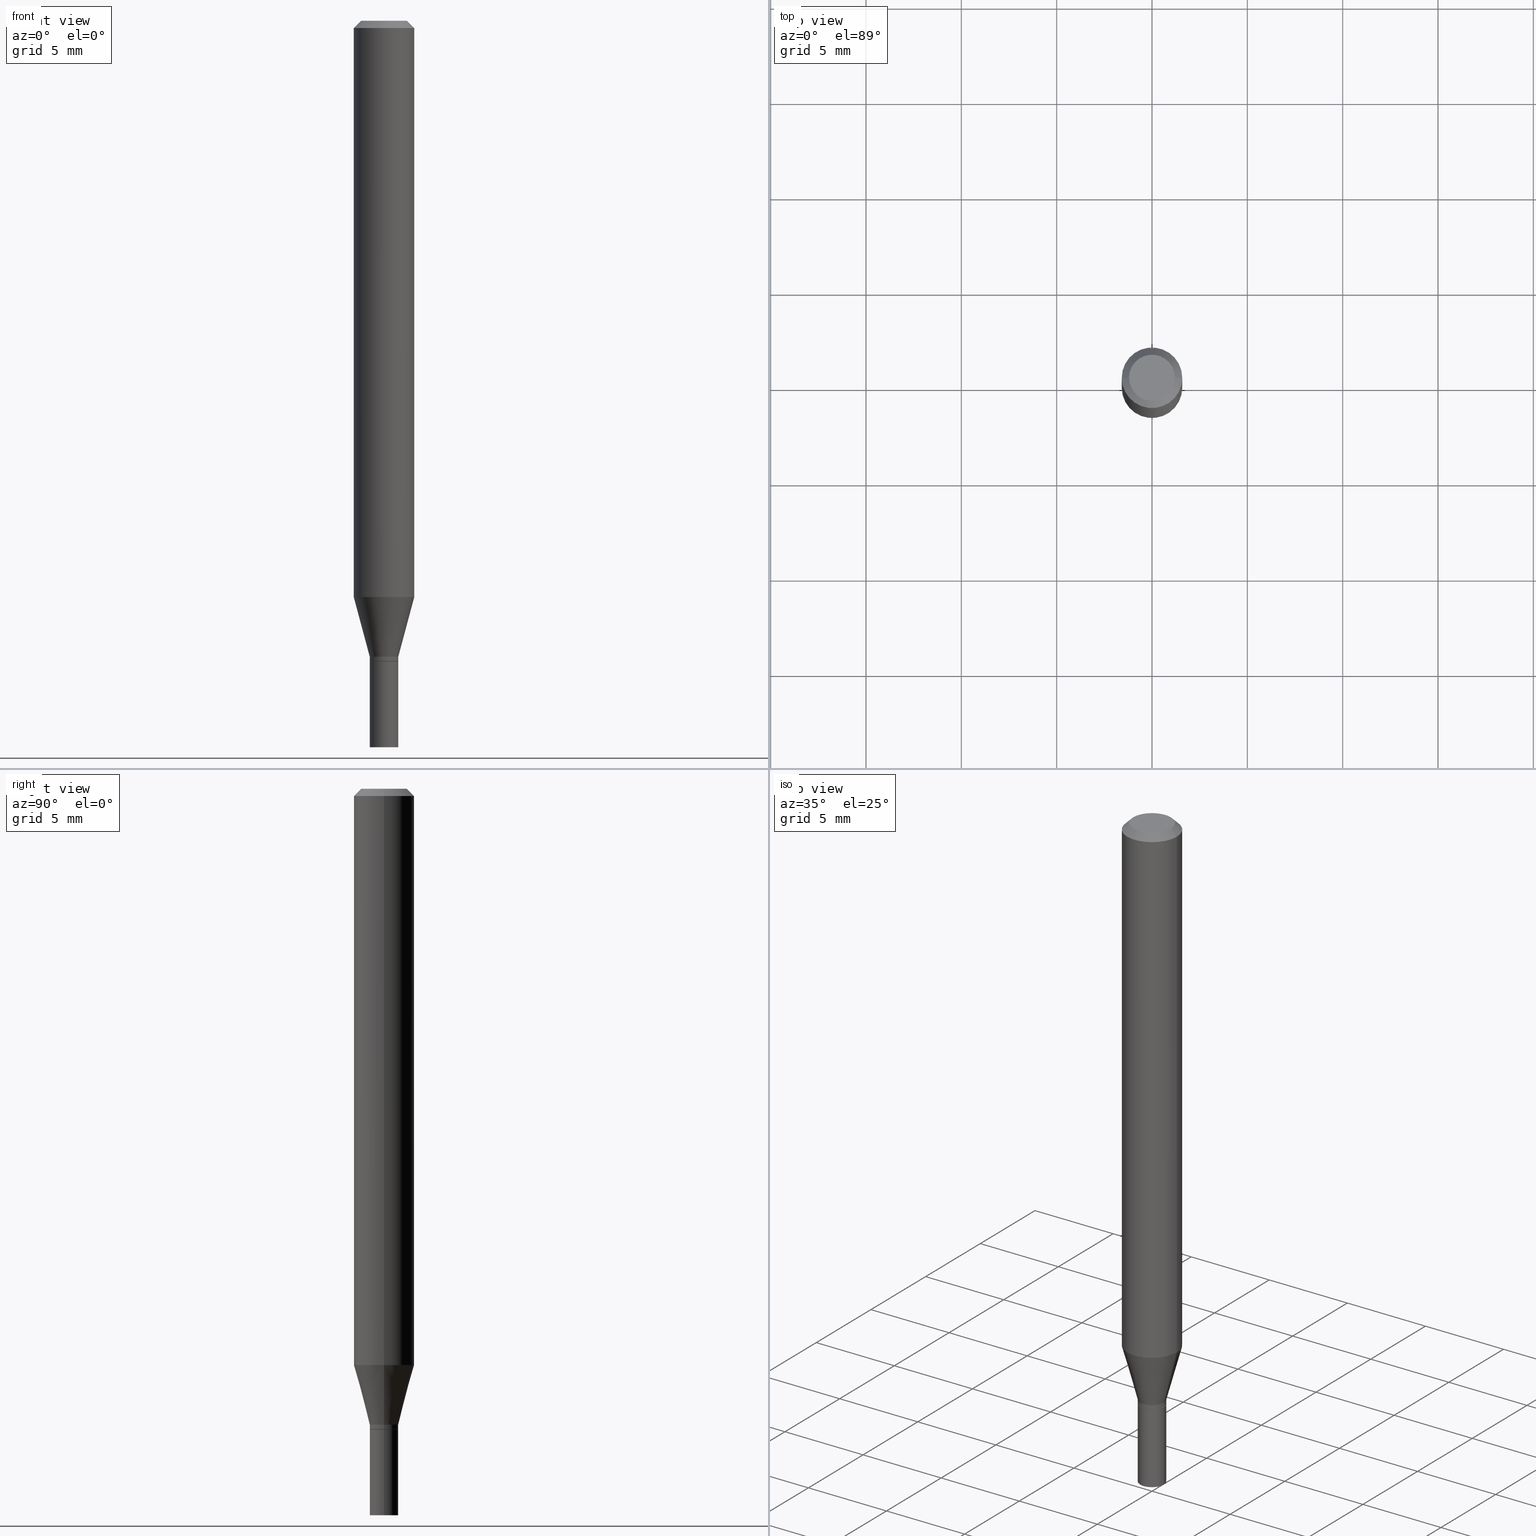
[diagram: canonical four-view strip — front | top / right | iso, engineering-drawing reading convention]
A machine part, canonical four-view strip (front | top / right | iso — engineering-drawing reading convention). The complete STEP part file that produces these views, byte-faithful:
ISO-10303-21;
HEADER;
FILE_DESCRIPTION (( 'STEP AP203' ),
    '1' );
FILE_NAME ('00568.STEP',
    '2024-03-19T21:45:27',
    ( '' ),
    ( '' ),
    'SwSTEP 2.0',
    'SolidWorks 2023',
    '' );
FILE_SCHEMA (( 'CONFIG_CONTROL_DESIGN' ));
ENDSEC;

DATA;
#1 = DIRECTION ( 'NONE',  ( -2.445468806185136597E-29, 3.491481338843145583E-15, 1.000000000000000000 ) ) ;
#2 = FACE_OUTER_BOUND ( 'NONE', #343, .T. ) ;
#3 = ORIENTED_EDGE ( 'NONE', *, *, #413, .T. ) ;
#4 = AXIS2_PLACEMENT_3D ( 'NONE', #465, #73, #169 ) ;
#5 = DIMENSIONAL_EXPONENTS ( 1.000000000000000000, 0.000000000000000000, 0.000000000000000000, 0.000000000000000000, 0.000000000000000000, 0.000000000000000000, 0.000000000000000000 ) ;
#6 = ORIENTED_EDGE ( 'NONE', *, *, #12, .F. ) ;
#7 = DIRECTION ( 'NONE',  ( -2.445468806185136597E-29, 3.491481338843145583E-15, 1.000000000000000000 ) ) ;
#8 = CONICAL_SURFACE ( 'NONE', #166, 0.02949999999999991865, 0.2617993877991501850 ) ;
#9 = DIRECTION ( 'NONE',  ( -2.445468806185136597E-29, 3.491481338843145583E-15, 1.000000000000000000 ) ) ;
#10 = ORIENTED_EDGE ( 'NONE', *, *, #55, .F. ) ;
#11 = DIRECTION ( 'NONE',  ( 1.000000000000000000, -6.982962677686262766E-15, 0.000000000000000000 ) ) ;
#12 = EDGE_CURVE ( 'NONE', #109, #408, #93, .T. ) ;
#13 = DIRECTION ( 'NONE',  ( 1.000000000000000000, -6.982962677686269866E-15, 0.000000000000000000 ) ) ;
#14 = CONICAL_SURFACE ( 'NONE', #62, 0.06250000000000000000, 0.7853981633974567167 ) ;
#15 = LOCAL_TIME ( 17, 45, 27.00000000000000000, #34 ) ;
#16 = EDGE_LOOP ( 'NONE', ( #345, #369 ) ) ;
#17 = FACE_OUTER_BOUND ( 'NONE', #227, .T. ) ;
#18 = APPLICATION_CONTEXT ( 'configuration controlled 3d designs of mechanical parts and assemblies' ) ;
#19 = FACE_OUTER_BOUND ( 'NONE', #56, .T. ) ;
#20 = EDGE_LOOP ( 'NONE', ( #10, #3, #300, #298 ) ) ;
#21 = EDGE_CURVE ( 'NONE', #216, #268, #359, .T. ) ;
#22 = DATE_AND_TIME ( #53, #232 ) ;
#23 = ORIENTED_EDGE ( 'NONE', *, *, #275, .F. ) ;
#24 = PLANE ( 'NONE',  #119 ) ;
#25 = LINE ( 'NONE', #67, #26 ) ;
#26 = VECTOR ( 'NONE', #206, 39.37007874015748143 ) ;
#27 = ORIENTED_EDGE ( 'NONE', *, *, #21, .F. ) ;
#28 = CARTESIAN_POINT ( 'NONE',  ( 2.909722286031829716E-29, -4.154312268143090689E-15, -1.189842323350227327 ) ) ;
#29 = CARTESIAN_POINT ( 'NONE',  ( -0.02949999999999992212, -4.407873963570831397E-15, -1.322500000000000231 ) ) ;
#30 = DIRECTION ( 'NONE',  ( 1.000000000000000000, -6.982962677686250933E-15, 0.000000000000000000 ) ) ;
#31 = ORIENTED_EDGE ( 'NONE', *, *, #215, .T. ) ;
#32 = EDGE_CURVE ( 'NONE', #354, #177, #172, .T. ) ;
#33 = DATE_AND_TIME ( #92, #464 ) ;
#34 = COORDINATED_UNIVERSAL_TIME_OFFSET ( 5, 0, .BEHIND. ) ;
#35 = DIRECTION ( 'NONE',  ( 1.000000000000000000, -6.982962677686266711E-15, 0.000000000000000000 ) ) ;
#36 = CC_DESIGN_PERSON_AND_ORGANIZATION_ASSIGNMENT ( #286, #251, ( #243 ) ) ;
#37 = DIRECTION ( 'NONE',  ( 1.000000000000000000, -6.982962677686265922E-15, 4.876176775795935793E-29 ) ) ;
#38 = EDGE_CURVE ( 'NONE', #408, #109, #418, .T. ) ;
#39 = CONICAL_SURFACE ( 'NONE', #281, 0.06250000000000000000, 0.7853981633974567167 ) ;
#40 = LINE ( 'NONE', #48, #324 ) ;
#41 = EDGE_CURVE ( 'NONE', #148, #63, #104, .T. ) ;
#42 = DIRECTION ( 'NONE',  ( 1.000000000000000000, -6.982962677686267499E-15, 4.852736867747366768E-29 ) ) ;
#43 = CARTESIAN_POINT ( 'NONE',  ( 3.235355230582935570E-29, -4.619229811289481459E-15, -1.323000000000000176 ) ) ;
#44 = FACE_OUTER_BOUND ( 'NONE', #393, .T. ) ;
#45 = AXIS2_PLACEMENT_3D ( 'NONE', #219, #1, #363 ) ;
#46 = VECTOR ( 'NONE', #390, 39.37007874015748143 ) ;
#47 = CARTESIAN_POINT ( 'NONE',  ( 3.210900542521084585E-29, -4.584314997901050598E-15, -1.313000000000000167 ) ) ;
#48 = CARTESIAN_POINT ( 'NONE',  ( 0.06250000000000000000, -4.364351673553916694E-16, 3.047610484872459871E-30 ) ) ;
#49 = DIRECTION ( 'NONE',  ( 0.7071067811865534569, -7.319954787623276556E-15, -0.7071067811865415775 ) ) ;
#50 = SHAPE_DEFINITION_REPRESENTATION ( #134, #164 ) ;
#51 = CARTESIAN_POINT ( 'NONE',  ( -0.02949999999999991865, -4.042463974572424662E-15, -1.313000000000000167 ) ) ;
#52 = VECTOR ( 'NONE', #341, 39.37007874015748143 ) ;
#53 = CALENDAR_DATE ( 2024, 19, 3 ) ;
#54 = ORIENTED_EDGE ( 'NONE', *, *, #32, .T. ) ;
#55 = EDGE_CURVE ( 'NONE', #177, #122, #181, .T. ) ;
#56 = EDGE_LOOP ( 'NONE', ( #279, #6, #402, #448 ) ) ;
#57 = EDGE_CURVE ( 'NONE', #408, #311, #105, .T. ) ;
#58 = DIRECTION ( 'NONE',  ( -1.000000000000000000, 6.982962677686265922E-15, -4.876176775795935793E-29 ) ) ;
#59 = ORIENTED_EDGE ( 'NONE', *, *, #12, .T. ) ;
#60 =( NAMED_UNIT ( * ) SI_UNIT ( $, .STERADIAN. ) SOLID_ANGLE_UNIT ( ) );
#61 = APPROVAL_DATE_TIME ( #22, #462 ) ;
#62 = AXIS2_PLACEMENT_3D ( 'NONE', #83, #78, #403 ) ;
#63 = VERTEX_POINT ( 'NONE', #188 ) ;
#64 = CC_DESIGN_PERSON_AND_ORGANIZATION_ASSIGNMENT ( #248, #310, ( #328 ) ) ;
#65 = ORIENTED_EDGE ( 'NONE', *, *, #32, .F. ) ;
#66 = APPLICATION_PROTOCOL_DEFINITION ( 'international standard', 'config_control_design', 1994, #18 ) ;
#67 = CARTESIAN_POINT ( 'NONE',  ( 0.02949999999999991865, -2.059973989917442990E-16, 1.438472148859797121E-30 ) ) ;
#68 = ADVANCED_FACE ( 'NONE', ( #258 ), #155, .T. ) ;
#69 = DATE_AND_TIME ( #386, #15 ) ;
#70 = CONICAL_SURFACE ( 'NONE', #88, 0.02899999999999999800, 0.7853981633974739252 ) ;
#71 = EDGE_CURVE ( 'NONE', #377, #122, #242, .T. ) ;
#72 = AXIS2_PLACEMENT_3D ( 'NONE', #153, #189, #411 ) ;
#73 = DIRECTION ( 'NONE',  ( -2.445468806185136597E-29, 3.491481338843145583E-15, 1.000000000000000000 ) ) ;
#74 = ADVANCED_FACE ( 'NONE', ( #331 ), #255, .T. ) ;
#75 = CARTESIAN_POINT ( 'NONE',  ( 0.000000000000000000, 0.000000000000000000, 0.000000000000000000 ) ) ;
#76 = DIRECTION ( 'NONE',  ( -2.445468806185136597E-29, 3.491481338843145583E-15, 1.000000000000000000 ) ) ;
#77 = AXIS2_PLACEMENT_3D ( 'NONE', #220, #366, #214 ) ;
#78 = DIRECTION ( 'NONE',  ( 2.445468806185136597E-29, -3.491481338843145583E-15, -1.000000000000000000 ) ) ;
#79 = ORIENTED_EDGE ( 'NONE', *, *, #127, .F. ) ;
#80 = ORIENTED_EDGE ( 'NONE', *, *, #371, .T. ) ;
#81 = APPLICATION_CONTEXT ( 'configuration controlled 3d designs of mechanical parts and assemblies' ) ;
#82 = DIRECTION ( 'NONE',  ( 1.000000000000000000, -6.982962677686269866E-15, 0.000000000000000000 ) ) ;
#83 = CARTESIAN_POINT ( 'NONE',  ( 3.668203209277705088E-31, -5.237222008264718399E-17, -0.01499999999999999944 ) ) ;
#84 = CC_DESIGN_DATE_AND_TIME_ASSIGNMENT ( #274, #352, ( #319 ) ) ;
#85 = CARTESIAN_POINT ( 'NONE',  ( 0.02949999999999991865, -4.790312396892795119E-15, -1.313000000000000167 ) ) ;
#86 = CC_DESIGN_APPROVAL ( #100, ( #373 ) ) ;
#87 = CARTESIAN_POINT ( 'NONE',  ( 0.02949999999999991865, -4.790312396892795119E-15, -1.313000000000000167 ) ) ;
#88 = AXIS2_PLACEMENT_3D ( 'NONE', #322, #460, #128 ) ;
#89 = ORIENTED_EDGE ( 'NONE', *, *, #113, .T. ) ;
#90 = ORIENTED_EDGE ( 'NONE', *, *, #301, .T. ) ;
#91 = ORIENTED_EDGE ( 'NONE', *, *, #361, .T. ) ;
#92 = CALENDAR_DATE ( 2024, 19, 3 ) ;
#93 = CIRCLE ( 'NONE', #45, 0.04749999999999999362 ) ;
#94 = CIRCLE ( 'NONE', #4, 0.02949999999999999845 ) ;
#95 = ORIENTED_EDGE ( 'NONE', *, *, #292, .T. ) ;
#96 = LOCAL_TIME ( 17, 45, 27.00000000000000000, #207 ) ;
#97 = DIRECTION ( 'NONE',  ( 0.000000000000000000, 0.000000000000000000, 1.000000000000000000 ) ) ;
#98 = APPROVAL_ROLE ( '' ) ;
#99 = DIRECTION ( 'NONE',  ( -2.445468806185136597E-29, 3.491481338843145583E-15, 1.000000000000000000 ) ) ;
#100 = APPROVAL ( #458, 'UNSPECIFIED' ) ;
#101 = VECTOR ( 'NONE', #49, 39.37007874015748143 ) ;
#102 = DIRECTION ( 'NONE',  ( 1.000000000000000000, -6.982962677686266711E-15, 0.000000000000000000 ) ) ;
#103 = DIRECTION ( 'NONE',  ( -2.445468806185136597E-29, 3.491481338843145583E-15, 1.000000000000000000 ) ) ;
#104 = CIRCLE ( 'NONE', #137, 0.02899999999999999800 ) ;
#105 = LINE ( 'NONE', #294, #101 ) ;
#106 = CARTESIAN_POINT ( 'NONE',  ( 0.02949999999999992212, -4.823481469611804476E-15, -1.322500000000000231 ) ) ;
#107 = DIRECTION ( 'NONE',  ( 2.438088387897960049E-29, -3.491481338843145188E-15, -1.000000000000000000 ) ) ;
#108 = ORIENTED_EDGE ( 'NONE', *, *, #226, .F. ) ;
#109 = VERTEX_POINT ( 'NONE', #399 ) ;
#110 = CYLINDRICAL_SURFACE ( 'NONE', #212, 0.02949999999999999845 ) ;
#111 = CIRCLE ( 'NONE', #296, 0.02949999999999999845 ) ;
#112 = ORIENTED_EDGE ( 'NONE', *, *, #38, .F. ) ;
#113 = EDGE_CURVE ( 'NONE', #377, #268, #303, .T. ) ;
#114 = ORIENTED_EDGE ( 'NONE', *, *, #292, .F. ) ;
#115 = CYLINDRICAL_SURFACE ( 'NONE', #72, 0.06250000000000000000 ) ;
#116 = ORIENTED_EDGE ( 'NONE', *, *, #71, .T. ) ;
#117 = CARTESIAN_POINT ( 'NONE',  ( 3.316907271900976096E-16, 0.04749999999999999362, -2.904368096790510281E-16 ) ) ;
#118 = CIRCLE ( 'NONE', #443, 0.06250000000000000000 ) ;
#119 = AXIS2_PLACEMENT_3D ( 'NONE', #117, #380, #58 ) ;
#120 = LINE ( 'NONE', #414, #329 ) ;
#121 = ORIENTED_EDGE ( 'NONE', *, *, #395, .F. ) ;
#122 = VERTEX_POINT ( 'NONE', #51 ) ;
#123 = PERSON_AND_ORGANIZATION_ROLE ( 'creator' ) ;
#124 = CARTESIAN_POINT ( 'NONE',  ( -0.02899999999999999800, -4.413172417919052222E-15, -1.323000000000000176 ) ) ;
#125 = AXIS2_PLACEMENT_3D ( 'NONE', #186, #336, #350 ) ;
#126 = ORIENTED_EDGE ( 'NONE', *, *, #452, .F. ) ;
#127 = EDGE_CURVE ( 'NONE', #337, #233, #374, .T. ) ;
#128 = DIRECTION ( 'NONE',  ( 1.000000000000000000, -6.982962677686266711E-15, 0.000000000000000000 ) ) ;
#129 = PERSON_AND_ORGANIZATION ( #170, #421 ) ;
#130 = APPROVAL_PERSON_ORGANIZATION ( #195, #462, #407 ) ;
#131 = FACE_OUTER_BOUND ( 'NONE', #384, .T. ) ;
#132 = DIRECTION ( 'NONE',  ( 1.000000000000000000, -6.982962677686266711E-15, 4.876176775795935793E-29 ) ) ;
#133 = ADVANCED_FACE ( 'NONE', ( #141 ), #404, .F. ) ;
#134 = PRODUCT_DEFINITION_SHAPE ( 'NONE', 'NONE',  #373 ) ;
#135 = DIRECTION ( 'NONE',  ( -2.438088387897960049E-29, 3.491481338843145188E-15, 1.000000000000000000 ) ) ;
#136 = DIRECTION ( 'NONE',  ( 1.000000000000000000, -6.982962677686269077E-15, 0.000000000000000000 ) ) ;
#137 = AXIS2_PLACEMENT_3D ( 'NONE', #43, #326, #175 ) ;
#138 = ADVANCED_FACE ( 'NONE', ( #187 ), #304, .F. ) ;
#139 = ORIENTED_EDGE ( 'NONE', *, *, #211, .F. ) ;
#140 = DIRECTION ( 'NONE',  ( 1.000000000000000000, -6.982962677686265922E-15, 4.876176775795935793E-29 ) ) ;
#141 = FACE_OUTER_BOUND ( 'NONE', #203, .T. ) ;
#142 = DIRECTION ( 'NONE',  ( 1.000000000000000000, -6.982962677686266711E-15, 0.000000000000000000 ) ) ;
#143 = EDGE_CURVE ( 'NONE', #63, #354, #394, .T. ) ;
#144 = PRODUCT_RELATED_PRODUCT_CATEGORY ( 'detail', '', ( #328 ) ) ;
#145 = ORIENTED_EDGE ( 'NONE', *, *, #38, .T. ) ;
#146 = CARTESIAN_POINT ( 'NONE',  ( 3.235355230582935570E-29, -4.619229811289481459E-15, -1.323000000000000176 ) ) ;
#147 = AXIS2_PLACEMENT_3D ( 'NONE', #266, #185, #11 ) ;
#148 = VERTEX_POINT ( 'NONE', #183 ) ;
#149 = VECTOR ( 'NONE', #367, 39.37007874015748143 ) ;
#150 = CARTESIAN_POINT ( 'NONE',  ( 3.668203209277705088E-31, -5.237222008264718399E-17, -0.01499999999999999944 ) ) ;
#151 = DIRECTION ( 'NONE',  ( -2.438088387897960049E-29, 3.491481338843145188E-15, 1.000000000000000000 ) ) ;
#152 = ORIENTED_EDGE ( 'NONE', *, *, #395, .T. ) ;
#153 = CARTESIAN_POINT ( 'NONE',  ( 0.000000000000000000, 0.000000000000000000, 0.000000000000000000 ) ) ;
#154 = EDGE_LOOP ( 'NONE', ( #353, #231, #80, #108 ) ) ;
#155 = CONICAL_SURFACE ( 'NONE', #222, 0.02949999999999991865, 0.2617993877991501850 ) ;
#156 = APPROVAL ( #419, 'UNSPECIFIED' ) ;
#157 = DIRECTION ( 'NONE',  ( -1.000000000000000000, 6.982962677686266711E-15, 0.000000000000000000 ) ) ;
#158 = ORIENTED_EDGE ( 'NONE', *, *, #325, .F. ) ;
#159 = MANIFOLD_SOLID_BREP ( 'Body-Move/Copy2[1]', #360 ) ;
#160 = LINE ( 'NONE', #124, #250 ) ;
#161 = ORIENTED_EDGE ( 'NONE', *, *, #55, .T. ) ;
#162 = COORDINATED_UNIVERSAL_TIME_OFFSET ( 5, 0, .BEHIND. ) ;
#163 = CARTESIAN_POINT ( 'NONE',  ( 0.02949999999999999845, -2.059973989917448413E-16, 1.438472148859800975E-30 ) ) ;
#164 = ADVANCED_BREP_SHAPE_REPRESENTATION ( '00568', ( #159, #168, #389 ), #290 ) ;
#165 = AXIS2_PLACEMENT_3D ( 'NONE', #210, #254, #35 ) ;
#166 = AXIS2_PLACEMENT_3D ( 'NONE', #237, #199, #13 ) ;
#167 = PERSON_AND_ORGANIZATION ( #170, #421 ) ;
#168 = MANIFOLD_SOLID_BREP ( 'Body-Move/Copy2[2]', #388 ) ;
#169 = DIRECTION ( 'NONE',  ( 1.000000000000000000, -6.982962677686250933E-15, 0.000000000000000000 ) ) ;
#170 = PERSON ( 'UNSPECIFIED', 'UNSPECIFIED', 'UNSPECIFIED', ('UNSPECIFIED'), ('UNSPECIFIED'), ('UNSPECIFIED') ) ;
#171 = CARTESIAN_POINT ( 'NONE',  ( 3.668203209277705088E-31, -5.237222008264718399E-17, -0.01499999999999999944 ) ) ;
#172 = CIRCLE ( 'NONE', #429, 0.02949999999999992212 ) ;
#173 = AXIS2_PLACEMENT_3D ( 'NONE', #28, #450, #277 ) ;
#174 = CYLINDRICAL_SURFACE ( 'NONE', #125, 0.02949999999999991865 ) ;
#175 = DIRECTION ( 'NONE',  ( 1.000000000000000000, -6.982962677686266711E-15, 0.000000000000000000 ) ) ;
#176 = CARTESIAN_POINT ( 'NONE',  ( 3.235355230582935570E-29, -4.619229811289481459E-15, -1.323000000000000176 ) ) ;
#177 = VERTEX_POINT ( 'NONE', #29 ) ;
#178 = EDGE_CURVE ( 'NONE', #354, #377, #25, .T. ) ;
#179 = CARTESIAN_POINT ( 'NONE',  ( 3.576687321579069994E-29, -5.368277968210015545E-15, -1.500000000000000222 ) ) ;
#180 = AXIS2_PLACEMENT_3D ( 'NONE', #356, #99, #461 ) ;
#181 = LINE ( 'NONE', #224, #318 ) ;
#182 = DIRECTION ( 'NONE',  ( -2.445468806185136877E-29, 3.491481338843145188E-15, 1.000000000000000000 ) ) ;
#183 = CARTESIAN_POINT ( 'NONE',  ( -0.02899999999999999800, -4.410523190744942598E-15, -1.323000000000000176 ) ) ;
#184 = VERTEX_POINT ( 'NONE', #415 ) ;
#185 = DIRECTION ( 'NONE',  ( -2.445468806185136597E-29, 3.491481338843145583E-15, 1.000000000000000000 ) ) ;
#186 = CARTESIAN_POINT ( 'NONE',  ( 0.000000000000000000, 0.000000000000000000, 0.000000000000000000 ) ) ;
#187 = FACE_OUTER_BOUND ( 'NONE', #16, .T. ) ;
#188 = CARTESIAN_POINT ( 'NONE',  ( 0.02899999999999999800, -4.821735728942382972E-15, -1.323000000000000176 ) ) ;
#189 = DIRECTION ( 'NONE',  ( -2.445468806185136597E-29, 3.491481338843145583E-15, 1.000000000000000000 ) ) ;
#190 = ADVANCED_FACE ( 'NONE', ( #19 ), #39, .T. ) ;
#191 = AXIS2_PLACEMENT_3D ( 'NONE', #146, #9, #142 ) ;
#192 = CARTESIAN_POINT ( 'NONE',  ( -0.02949999999999999845, 2.096101070492295438E-16, -1.451085851625197166E-30 ) ) ;
#193 = ORIENTED_EDGE ( 'NONE', *, *, #41, .T. ) ;
#194 = CARTESIAN_POINT ( 'NONE',  ( 0.04749999999999999362, -4.035134999187582567E-16, -2.491828921680006996E-16 ) ) ;
#195 = PERSON_AND_ORGANIZATION ( #170, #421 ) ;
#196 = VERTEX_POINT ( 'NONE', #238 ) ;
#197 = ADVANCED_FACE ( 'NONE', ( #201 ), #451, .T. ) ;
#198 = ORIENTED_EDGE ( 'NONE', *, *, #433, .F. ) ;
#199 = DIRECTION ( 'NONE',  ( -2.445468806185136597E-29, 3.491481338843145583E-15, 1.000000000000000000 ) ) ;
#200 = AXIS2_PLACEMENT_3D ( 'NONE', #358, #107, #432 ) ;
#201 = FACE_OUTER_BOUND ( 'NONE', #293, .T. ) ;
#202 = CIRCLE ( 'NONE', #362, 0.02949999999999992212 ) ;
#203 = EDGE_LOOP ( 'NONE', ( #139, #307 ) ) ;
#204 = CC_DESIGN_PERSON_AND_ORGANIZATION_ASSIGNMENT ( #167, #123, ( #373 ) ) ;
#205 = ORIENTED_EDGE ( 'NONE', *, *, #178, .F. ) ;
#206 = DIRECTION ( 'NONE',  ( -2.445468806185136877E-29, 3.491481338843145188E-15, 1.000000000000000000 ) ) ;
#207 = COORDINATED_UNIVERSAL_TIME_OFFSET ( 5, 0, .BEHIND. ) ;
#208 = CARTESIAN_POINT ( 'NONE',  ( -0.06250000000000000000, 4.440892098500626162E-16, -3.074334431409316114E-30 ) ) ;
#209 = AXIS2_PLACEMENT_3D ( 'NONE', #278, #323, #37 ) ;
#210 = CARTESIAN_POINT ( 'NONE',  ( 3.235355230582935570E-29, -4.619229811289481459E-15, -1.323000000000000176 ) ) ;
#211 = EDGE_CURVE ( 'NONE', #63, #148, #305, .T. ) ;
#212 = AXIS2_PLACEMENT_3D ( 'NONE', #262, #7, #140 ) ;
#213 = DIRECTION ( 'NONE',  ( -2.445468806185136597E-29, 3.491481338843145583E-15, 1.000000000000000000 ) ) ;
#214 = DIRECTION ( 'NONE',  ( 1.000000000000000000, -6.982962677686250933E-15, 0.000000000000000000 ) ) ;
#215 = EDGE_CURVE ( 'NONE', #122, #377, #401, .T. ) ;
#216 = VERTEX_POINT ( 'NONE', #247 ) ;
#217 = ORIENTED_EDGE ( 'NONE', *, *, #113, .F. ) ;
#218 = CARTESIAN_POINT ( 'NONE',  ( 0.02899999999999999800, -4.821735728942382972E-15, -1.323000000000000176 ) ) ;
#219 = CARTESIAN_POINT ( 'NONE',  ( 6.093689898318465335E-45, -8.700174179635472181E-31, -2.491828921680032634E-16 ) ) ;
#220 = CARTESIAN_POINT ( 'NONE',  ( 3.668203209277704895E-29, -5.237222008264718177E-15, -1.500000000000000222 ) ) ;
#221 = ORIENTED_EDGE ( 'NONE', *, *, #143, .T. ) ;
#222 = AXIS2_PLACEMENT_3D ( 'NONE', #430, #370, #335 ) ;
#223 = APPROVAL_PERSON_ORGANIZATION ( #454, #100, #355 ) ;
#224 = CARTESIAN_POINT ( 'NONE',  ( -0.02949999999999991865, 2.096101070492289768E-16, -1.451085851625193138E-30 ) ) ;
#225 = PERSON_AND_ORGANIZATION_ROLE ( 'creator' ) ;
#226 = EDGE_CURVE ( 'NONE', #244, #311, #118, .T. ) ;
#227 = EDGE_LOOP ( 'NONE', ( #270, #90, #347, #417 ) ) ;
#228 = FACE_OUTER_BOUND ( 'NONE', #412, .T. ) ;
#229 = DIRECTION ( 'NONE',  ( 0.2588190451025214611, 1.565188264969620982E-15, 0.9659258262890679791 ) ) ;
#230 = DIRECTION ( 'NONE',  ( -0.2588190451025214611, 5.211531920934550253E-15, 0.9659258262890679791 ) ) ;
#231 = ORIENTED_EDGE ( 'NONE', *, *, #21, .T. ) ;
#232 = LOCAL_TIME ( 17, 45, 27.00000000000000000, #344 ) ;
#233 = VERTEX_POINT ( 'NONE', #425 ) ;
#234 = EDGE_CURVE ( 'NONE', #233, #184, #94, .T. ) ;
#235 = EDGE_LOOP ( 'NONE', ( #121, #31, #89, #27 ) ) ;
#236 =( NAMED_UNIT ( * ) PLANE_ANGLE_UNIT ( ) SI_UNIT ( $, .RADIAN. ) );
#237 = CARTESIAN_POINT ( 'NONE',  ( 3.210900542521084585E-29, -4.584314997901050598E-15, -1.313000000000000167 ) ) ;
#238 = CARTESIAN_POINT ( 'NONE',  ( 0.02949999999999999845, -5.443219407256462698E-15, -1.500000000000000222 ) ) ;
#239 = COORDINATED_UNIVERSAL_TIME_OFFSET ( 5, 0, .BEHIND. ) ;
#240 = ORIENTED_EDGE ( 'NONE', *, *, #253, .F. ) ;
#241 = CALENDAR_DATE ( 2024, 19, 3 ) ;
#242 = CIRCLE ( 'NONE', #376, 0.02949999999999991865 ) ;
#243 = PRODUCT_DEFINITION_FORMATION_WITH_SPECIFIED_SOURCE ( 'ANY', '', #328, .NOT_KNOWN. ) ;
#244 = VERTEX_POINT ( 'NONE', #387 ) ;
#245 = DATE_AND_TIME ( #241, #96 ) ;
#246 = DIRECTION ( 'NONE',  ( -2.445468806185136877E-29, 3.491481338843145188E-15, 1.000000000000000000 ) ) ;
#247 = CARTESIAN_POINT ( 'NONE',  ( -0.06249999999999999306, -3.710223058293028073E-15, -1.189842323350227327 ) ) ;
#248 = PERSON_AND_ORGANIZATION ( #170, #421 ) ;
#249 = DIRECTION ( 'NONE',  ( 1.000000000000000000, -6.982962677686266711E-15, 0.000000000000000000 ) ) ;
#250 = VECTOR ( 'NONE', #316, 39.37007874015748143 ) ;
#251 = PERSON_AND_ORGANIZATION_ROLE ( 'design_supplier' ) ;
#252 = UNCERTAINTY_MEASURE_WITH_UNIT (LENGTH_MEASURE( 1.000000000000000082E-05 ), #423, 'distance_accuracy_value', 'NONE');
#253 = EDGE_CURVE ( 'NONE', #196, #184, #287, .T. ) ;
#254 = DIRECTION ( 'NONE',  ( -2.445468806185136597E-29, 3.491481338843145583E-15, 1.000000000000000000 ) ) ;
#255 = CONICAL_SURFACE ( 'NONE', #191, 0.02899999999999999800, 0.7853981633974739252 ) ;
#256 = CIRCLE ( 'NONE', #173, 0.06250000000000000000 ) ;
#257 = PLANE ( 'NONE',  #368 ) ;
#258 = FACE_OUTER_BOUND ( 'NONE', #235, .T. ) ;
#259 = DIRECTION ( 'NONE',  ( 1.000000000000000000, -6.982962677686250933E-15, 0.000000000000000000 ) ) ;
#260 = DIRECTION ( 'NONE',  ( 1.000000000000000000, -6.982962677686265922E-15, 4.876176775795935793E-29 ) ) ;
#261 = EDGE_LOOP ( 'NONE', ( #112, #453, #382, #198 ) ) ;
#262 = CARTESIAN_POINT ( 'NONE',  ( 0.000000000000000000, 0.000000000000000000, 0.000000000000000000 ) ) ;
#263 = CIRCLE ( 'NONE', #77, 0.02949999999999999845 ) ;
#264 = ADVANCED_FACE ( 'NONE', ( #131 ), #426, .T. ) ;
#265 = LOCAL_TIME ( 17, 45, 27.00000000000000000, #239 ) ;
#266 = CARTESIAN_POINT ( 'NONE',  ( 2.909722286031829716E-29, -4.154312268143090689E-15, -1.189842323350227327 ) ) ;
#267 = PERSON_AND_ORGANIZATION ( #170, #421 ) ;
#268 = VERTEX_POINT ( 'NONE', #291 ) ;
#269 = EDGE_CURVE ( 'NONE', #311, #244, #271, .T. ) ;
#270 = ORIENTED_EDGE ( 'NONE', *, *, #452, .T. ) ;
#271 = CIRCLE ( 'NONE', #463, 0.06250000000000000000 ) ;
#272 = CARTESIAN_POINT ( 'NONE',  ( -0.02949999999999991865, -4.374704890851822041E-15, -1.313000000000000167 ) ) ;
#273 =( LENGTH_UNIT ( ) NAMED_UNIT ( * ) SI_UNIT ( $, .METRE. ) );
#274 = DATE_AND_TIME ( #447, #265 ) ;
#275 = EDGE_CURVE ( 'NONE', #196, #337, #111, .T. ) ;
#276 = EDGE_LOOP ( 'NONE', ( #436, #95, #65, #410 ) ) ;
#277 = DIRECTION ( 'NONE',  ( 1.000000000000000000, -6.982962677686262766E-15, 0.000000000000000000 ) ) ;
#278 = CARTESIAN_POINT ( 'NONE',  ( 0.000000000000000000, 0.000000000000000000, 0.000000000000000000 ) ) ;
#279 = ORIENTED_EDGE ( 'NONE', *, *, #57, .F. ) ;
#280 = DATE_TIME_ROLE ( 'creation_date' ) ;
#281 = AXIS2_PLACEMENT_3D ( 'NONE', #150, #440, #157 ) ;
#282 = LENGTH_MEASURE_WITH_UNIT ( LENGTH_MEASURE( 0.02539999999999999897 ), #273 );
#283 = FACE_OUTER_BOUND ( 'NONE', #396, .T. ) ;
#284 = MECHANICAL_CONTEXT ( 'NONE', #81, 'mechanical' ) ;
#285 = CC_DESIGN_PERSON_AND_ORGANIZATION_ASSIGNMENT ( #129, #225, ( #243 ) ) ;
#286 = PERSON_AND_ORGANIZATION ( #170, #421 ) ;
#287 = LINE ( 'NONE', #163, #46 ) ;
#288 = DIRECTION ( 'NONE',  ( -2.445468806185136597E-29, 3.491481338843145583E-15, 1.000000000000000000 ) ) ;
#289 = AXIS2_PLACEMENT_3D ( 'NONE', #176, #295, #259 ) ;
#290 =( GEOMETRIC_REPRESENTATION_CONTEXT ( 3 ) GLOBAL_UNCERTAINTY_ASSIGNED_CONTEXT ( ( #252 ) ) GLOBAL_UNIT_ASSIGNED_CONTEXT ( ( #423, #236, #60 ) ) REPRESENTATION_CONTEXT ( 'NONE', 'WORKASPACE' ) );
#291 = CARTESIAN_POINT ( 'NONE',  ( 0.06249999999999999306, -4.590747435498482358E-15, -1.189842323350227327 ) ) ;
#292 = EDGE_CURVE ( 'NONE', #148, #177, #160, .T. ) ;
#293 = EDGE_LOOP ( 'NONE', ( #79, #91, #379, #317 ) ) ;
#294 = CARTESIAN_POINT ( 'NONE',  ( 0.06250000000000000000, -4.811533449433679005E-16, -0.01499999999999999944 ) ) ;
#295 = DIRECTION ( 'NONE',  ( -2.445468806185136597E-29, 3.491481338843145583E-15, 1.000000000000000000 ) ) ;
#296 = AXIS2_PLACEMENT_3D ( 'NONE', #392, #76, #30 ) ;
#297 = CC_DESIGN_APPROVAL ( #462, ( #319 ) ) ;
#298 = ORIENTED_EDGE ( 'NONE', *, *, #215, .F. ) ;
#299 = CYLINDRICAL_SURFACE ( 'NONE', #383, 0.06250000000000000000 ) ;
#300 = ORIENTED_EDGE ( 'NONE', *, *, #178, .T. ) ;
#301 = EDGE_CURVE ( 'NONE', #216, #244, #455, .T. ) ;
#302 = ORIENTED_EDGE ( 'NONE', *, *, #275, .T. ) ;
#303 = LINE ( 'NONE', #87, #457 ) ;
#304 = PLANE ( 'NONE',  #200 ) ;
#305 = CIRCLE ( 'NONE', #165, 0.02899999999999999800 ) ;
#306 = DESIGN_CONTEXT ( 'detailed design', #18, 'design' ) ;
#307 = ORIENTED_EDGE ( 'NONE', *, *, #41, .F. ) ;
#308 = DIRECTION ( 'NONE',  ( -2.445468806185136597E-29, 3.491481338843145583E-15, 1.000000000000000000 ) ) ;
#309 = EDGE_LOOP ( 'NONE', ( #59, #145 ) ) ;
#310 = PERSON_AND_ORGANIZATION_ROLE ( 'design_owner' ) ;
#311 = VERTEX_POINT ( 'NONE', #385 ) ;
#312 = DIRECTION ( 'NONE',  ( 1.000000000000000000, 0.000000000000000000, 0.000000000000000000 ) ) ;
#313 = FACE_OUTER_BOUND ( 'NONE', #309, .T. ) ;
#314 = ORIENTED_EDGE ( 'NONE', *, *, #361, .F. ) ;
#315 = ADVANCED_FACE ( 'NONE', ( #283 ), #70, .T. ) ;
#316 = DIRECTION ( 'NONE',  ( -0.7071067811865656694, 7.493145998870420424E-15, 0.7071067811865294761 ) ) ;
#317 = ORIENTED_EDGE ( 'NONE', *, *, #234, .F. ) ;
#318 = VECTOR ( 'NONE', #365, 39.37007874015748143 ) ;
#319 = SECURITY_CLASSIFICATION ( '', '', #378 ) ;
#320 = DIRECTION ( 'NONE',  ( -2.445468806185136597E-29, 3.491481338843145583E-15, 1.000000000000000000 ) ) ;
#321 = APPROVAL_DATE_TIME ( #69, #156 ) ;
#322 = CARTESIAN_POINT ( 'NONE',  ( 3.235355230582935570E-29, -4.619229811289481459E-15, -1.323000000000000176 ) ) ;
#323 = DIRECTION ( 'NONE',  ( -2.445468806185136597E-29, 3.491481338843145583E-15, 1.000000000000000000 ) ) ;
#324 = VECTOR ( 'NONE', #182, 39.37007874015748143 ) ;
#325 = EDGE_CURVE ( 'NONE', #184, #233, #420, .T. ) ;
#326 = DIRECTION ( 'NONE',  ( -2.445468806185136597E-29, 3.491481338843145583E-15, 1.000000000000000000 ) ) ;
#327 = DIRECTION ( 'NONE',  ( 1.000000000000000000, -6.982962677686265922E-15, 4.876176775795935793E-29 ) ) ;
#328 = PRODUCT ( '00568', '00568', '', ( #284 ) ) ;
#329 = VECTOR ( 'NONE', #338, 39.37007874015748143 ) ;
#330 = CC_DESIGN_PERSON_AND_ORGANIZATION_ASSIGNMENT ( #267, #441, ( #319 ) ) ;
#331 = FACE_OUTER_BOUND ( 'NONE', #276, .T. ) ;
#332 = FACE_OUTER_BOUND ( 'NONE', #20, .T. ) ;
#333 = CARTESIAN_POINT ( 'NONE',  ( 3.235355230582935570E-29, -4.619229811289481459E-15, -1.323000000000000176 ) ) ;
#334 = ORIENTED_EDGE ( 'NONE', *, *, #413, .F. ) ;
#335 = DIRECTION ( 'NONE',  ( 1.000000000000000000, -6.982962677686269866E-15, 0.000000000000000000 ) ) ;
#336 = DIRECTION ( 'NONE',  ( -2.445468806185136597E-29, 3.491481338843145583E-15, 1.000000000000000000 ) ) ;
#337 = VERTEX_POINT ( 'NONE', #466 ) ;
#338 = DIRECTION ( 'NONE',  ( -0.7071067811865534569, 2.468850131082318986E-15, -0.7071067811865415775 ) ) ;
#339 = VECTOR ( 'NONE', #230, 39.37007874015748143 ) ;
#340 = ADVANCED_FACE ( 'NONE', ( #44 ), #257, .F. ) ;
#341 = DIRECTION ( 'NONE',  ( -2.445468806185136877E-29, 3.491481338843145188E-15, 1.000000000000000000 ) ) ;
#342 = LINE ( 'NONE', #272, #339 ) ;
#343 = EDGE_LOOP ( 'NONE', ( #302, #456, #158, #240 ) ) ;
#344 = COORDINATED_UNIVERSAL_TIME_OFFSET ( 5, 0, .BEHIND. ) ;
#345 = ORIENTED_EDGE ( 'NONE', *, *, #325, .T. ) ;
#346 = ADVANCED_FACE ( 'NONE', ( #2 ), #110, .T. ) ;
#347 = ORIENTED_EDGE ( 'NONE', *, *, #269, .F. ) ;
#348 = VECTOR ( 'NONE', #246, 39.37007874015748143 ) ;
#349 = APPROVAL_PERSON_ORGANIZATION ( #416, #156, #98 ) ;
#350 = DIRECTION ( 'NONE',  ( 1.000000000000000000, -6.982962677686266711E-15, 4.876176775795935793E-29 ) ) ;
#351 = ADVANCED_FACE ( 'NONE', ( #428 ), #299, .T. ) ;
#352 = DATE_TIME_ROLE ( 'classification_date' ) ;
#353 = ORIENTED_EDGE ( 'NONE', *, *, #301, .F. ) ;
#354 = VERTEX_POINT ( 'NONE', #106 ) ;
#355 = APPROVAL_ROLE ( '' ) ;
#356 = CARTESIAN_POINT ( 'NONE',  ( 3.210900542521084585E-29, -4.584314997901050598E-15, -1.313000000000000167 ) ) ;
#357 = ADVANCED_FACE ( 'NONE', ( #398 ), #14, .T. ) ;
#358 = CARTESIAN_POINT ( 'NONE',  ( 2.059973989917772093E-16, 0.02949999999999538061, -1.323000000000000176 ) ) ;
#359 = CIRCLE ( 'NONE', #147, 0.06250000000000000000 ) ;
#360 = CLOSED_SHELL ( 'NONE', ( #346, #340, #197, #138 ) ) ;
#361 = EDGE_CURVE ( 'NONE', #337, #196, #263, .T. ) ;
#362 = AXIS2_PLACEMENT_3D ( 'NONE', #445, #308, #442 ) ;
#363 = DIRECTION ( 'NONE',  ( 1.000000000000000000, -6.982962677686267499E-15, 4.852736867747366768E-29 ) ) ;
#364 = CC_DESIGN_DATE_AND_TIME_ASSIGNMENT ( #245, #280, ( #373 ) ) ;
#365 = DIRECTION ( 'NONE',  ( -2.445468806185136877E-29, 3.491481338843145188E-15, 1.000000000000000000 ) ) ;
#366 = DIRECTION ( 'NONE',  ( -2.445468806185136597E-29, 3.491481338843145583E-15, 1.000000000000000000 ) ) ;
#367 = DIRECTION ( 'NONE',  ( 0.7071067811865656694, -2.468850131082446387E-15, 0.7071067811865294761 ) ) ;
#368 = AXIS2_PLACEMENT_3D ( 'NONE', #179, #135, #327 ) ;
#369 = ORIENTED_EDGE ( 'NONE', *, *, #234, .T. ) ;
#370 = DIRECTION ( 'NONE',  ( -2.445468806185136597E-29, 3.491481338843145583E-15, 1.000000000000000000 ) ) ;
#371 = EDGE_CURVE ( 'NONE', #268, #311, #40, .T. ) ;
#372 = DIRECTION ( 'NONE',  ( -2.445468806185136597E-29, 3.491481338843145583E-15, 1.000000000000000000 ) ) ;
#373 = PRODUCT_DEFINITION ( 'UNKNOWN', '', #243, #306 ) ;
#374 = LINE ( 'NONE', #192, #52 ) ;
#375 = APPROVAL_STATUS ( 'not_yet_approved' ) ;
#376 = AXIS2_PLACEMENT_3D ( 'NONE', #47, #397, #82 ) ;
#377 = VERTEX_POINT ( 'NONE', #85 ) ;
#378 = SECURITY_CLASSIFICATION_LEVEL ( 'unclassified' ) ;
#379 = ORIENTED_EDGE ( 'NONE', *, *, #253, .T. ) ;
#380 = DIRECTION ( 'NONE',  ( 2.438088387897960049E-29, -3.491481338843145188E-15, -1.000000000000000000 ) ) ;
#381 = CARTESIAN_POINT ( 'NONE',  ( 0.000000000000000000, 0.000000000000000000, 0.000000000000000000 ) ) ;
#382 = ORIENTED_EDGE ( 'NONE', *, *, #269, .T. ) ;
#383 = AXIS2_PLACEMENT_3D ( 'NONE', #435, #103, #400 ) ;
#384 = EDGE_LOOP ( 'NONE', ( #54, #161, #437, #205 ) ) ;
#385 = CARTESIAN_POINT ( 'NONE',  ( 0.06250000000000000000, -4.888073874380388472E-16, -0.01499999999999999944 ) ) ;
#386 = CALENDAR_DATE ( 2024, 19, 3 ) ;
#387 = CARTESIAN_POINT ( 'NONE',  ( -0.06250000000000000000, -1.659253034262806268E-15, -0.01499999999999999944 ) ) ;
#388 = CLOSED_SHELL ( 'NONE', ( #264, #74, #357, #405, #446, #68, #351, #190, #422, #133, #315, #391 ) ) ;
#389 = AXIS2_PLACEMENT_3D ( 'NONE', #381, #97, #312 ) ;
#390 = DIRECTION ( 'NONE',  ( -2.445468806185136877E-29, 3.491481338843145188E-15, 1.000000000000000000 ) ) ;
#391 = ADVANCED_FACE ( 'NONE', ( #332 ), #174, .T. ) ;
#392 = CARTESIAN_POINT ( 'NONE',  ( 3.668203209277704895E-29, -5.237222008264718177E-15, -1.500000000000000222 ) ) ;
#393 = EDGE_LOOP ( 'NONE', ( #23, #314 ) ) ;
#394 = LINE ( 'NONE', #218, #149 ) ;
#395 = EDGE_CURVE ( 'NONE', #122, #216, #342, .T. ) ;
#396 = EDGE_LOOP ( 'NONE', ( #114, #193, #221, #334 ) ) ;
#397 = DIRECTION ( 'NONE',  ( -2.445468806185136597E-29, 3.491481338843145583E-15, 1.000000000000000000 ) ) ;
#398 = FACE_OUTER_BOUND ( 'NONE', #261, .T. ) ;
#399 = CARTESIAN_POINT ( 'NONE',  ( -0.04749999999999999362, 3.578768372314206562E-16, -2.491828921680056300E-16 ) ) ;
#400 = DIRECTION ( 'NONE',  ( 1.000000000000000000, -6.982962677686266711E-15, 4.876176775795935793E-29 ) ) ;
#401 = CIRCLE ( 'NONE', #180, 0.02949999999999991865 ) ;
#402 = ORIENTED_EDGE ( 'NONE', *, *, #433, .T. ) ;
#403 = DIRECTION ( 'NONE',  ( -1.000000000000000000, 6.982962677686266711E-15, 0.000000000000000000 ) ) ;
#404 = PLANE ( 'NONE',  #409 ) ;
#405 = ADVANCED_FACE ( 'NONE', ( #17 ), #115, .T. ) ;
#406 = CARTESIAN_POINT ( 'NONE',  ( 3.234132496179843329E-29, -4.617484070620059955E-15, -1.322500000000000231 ) ) ;
#407 = APPROVAL_ROLE ( '' ) ;
#408 = VERTEX_POINT ( 'NONE', #194 ) ;
#409 = AXIS2_PLACEMENT_3D ( 'NONE', #333, #151, #260 ) ;
#410 = ORIENTED_EDGE ( 'NONE', *, *, #143, .F. ) ;
#411 = DIRECTION ( 'NONE',  ( 1.000000000000000000, -6.982962677686266711E-15, 4.876176775795935793E-29 ) ) ;
#412 = EDGE_LOOP ( 'NONE', ( #116, #152, #126, #217 ) ) ;
#413 = EDGE_CURVE ( 'NONE', #177, #354, #202, .T. ) ;
#414 = CARTESIAN_POINT ( 'NONE',  ( -0.06250000000000000000, 3.840629472727444916E-16, -0.01499999999999999944 ) ) ;
#415 = CARTESIAN_POINT ( 'NONE',  ( 0.02949999999999999845, -4.825227210281225980E-15, -1.323000000000000176 ) ) ;
#416 = PERSON_AND_ORGANIZATION ( #170, #421 ) ;
#417 = ORIENTED_EDGE ( 'NONE', *, *, #371, .F. ) ;
#418 = CIRCLE ( 'NONE', #438, 0.04749999999999999362 ) ;
#419 = APPROVAL_STATUS ( 'not_yet_approved' ) ;
#420 = CIRCLE ( 'NONE', #289, 0.02949999999999999845 ) ;
#421 = ORGANIZATION ( 'UNSPECIFIED', 'UNSPECIFIED', '' ) ;
#422 = ADVANCED_FACE ( 'NONE', ( #313 ), #24, .F. ) ;
#423 =( CONVERSION_BASED_UNIT ( 'INCH', #282 ) LENGTH_UNIT ( ) NAMED_UNIT ( #5 ) );
#424 = AXIS2_PLACEMENT_3D ( 'NONE', #75, #320, #132 ) ;
#425 = CARTESIAN_POINT ( 'NONE',  ( -0.02949999999999999845, -4.718615802727869288E-15, -1.323000000000000176 ) ) ;
#426 = CYLINDRICAL_SURFACE ( 'NONE', #424, 0.02949999999999991865 ) ;
#427 = CARTESIAN_POINT ( 'NONE',  ( 3.668203209277705088E-31, -5.237222008264718399E-17, -0.01499999999999999944 ) ) ;
#428 = FACE_OUTER_BOUND ( 'NONE', #154, .T. ) ;
#429 = AXIS2_PLACEMENT_3D ( 'NONE', #406, #213, #136 ) ;
#430 = CARTESIAN_POINT ( 'NONE',  ( 3.210900542521084585E-29, -4.584314997901050598E-15, -1.313000000000000167 ) ) ;
#431 = CC_DESIGN_SECURITY_CLASSIFICATION ( #319, ( #243 ) ) ;
#432 = DIRECTION ( 'NONE',  ( -1.000000000000000000, 6.982962677686265922E-15, -4.876176775795935793E-29 ) ) ;
#433 = EDGE_CURVE ( 'NONE', #109, #244, #120, .T. ) ;
#434 = CARTESIAN_POINT ( 'NONE',  ( 6.093689898318465335E-45, -8.700174179635472181E-31, -2.491828921680032634E-16 ) ) ;
#435 = CARTESIAN_POINT ( 'NONE',  ( 0.000000000000000000, 0.000000000000000000, 0.000000000000000000 ) ) ;
#436 = ORIENTED_EDGE ( 'NONE', *, *, #211, .T. ) ;
#437 = ORIENTED_EDGE ( 'NONE', *, *, #71, .F. ) ;
#438 = AXIS2_PLACEMENT_3D ( 'NONE', #434, #372, #42 ) ;
#439 = CC_DESIGN_APPROVAL ( #156, ( #243 ) ) ;
#440 = DIRECTION ( 'NONE',  ( 2.445468806185136597E-29, -3.491481338843145583E-15, -1.000000000000000000 ) ) ;
#441 = PERSON_AND_ORGANIZATION_ROLE ( 'classification_officer' ) ;
#442 = DIRECTION ( 'NONE',  ( 1.000000000000000000, -6.982962677686269077E-15, 0.000000000000000000 ) ) ;
#443 = AXIS2_PLACEMENT_3D ( 'NONE', #171, #459, #249 ) ;
#444 = APPROVAL_DATE_TIME ( #33, #100 ) ;
#445 = CARTESIAN_POINT ( 'NONE',  ( 3.234132496179843329E-29, -4.617484070620059955E-15, -1.322500000000000231 ) ) ;
#446 = ADVANCED_FACE ( 'NONE', ( #228 ), #8, .T. ) ;
#447 = CALENDAR_DATE ( 2024, 19, 3 ) ;
#448 = ORIENTED_EDGE ( 'NONE', *, *, #226, .T. ) ;
#449 = APPLICATION_PROTOCOL_DEFINITION ( 'international standard', 'config_control_design', 1994, #81 ) ;
#450 = DIRECTION ( 'NONE',  ( -2.445468806185136597E-29, 3.491481338843145583E-15, 1.000000000000000000 ) ) ;
#451 = CYLINDRICAL_SURFACE ( 'NONE', #209, 0.02949999999999999845 ) ;
#452 = EDGE_CURVE ( 'NONE', #268, #216, #256, .T. ) ;
#453 = ORIENTED_EDGE ( 'NONE', *, *, #57, .T. ) ;
#454 = PERSON_AND_ORGANIZATION ( #170, #421 ) ;
#455 = LINE ( 'NONE', #208, #348 ) ;
#456 = ORIENTED_EDGE ( 'NONE', *, *, #127, .T. ) ;
#457 = VECTOR ( 'NONE', #229, 39.37007874015748143 ) ;
#458 = APPROVAL_STATUS ( 'not_yet_approved' ) ;
#459 = DIRECTION ( 'NONE',  ( -2.445468806185136597E-29, 3.491481338843145583E-15, 1.000000000000000000 ) ) ;
#460 = DIRECTION ( 'NONE',  ( -2.445468806185136597E-29, 3.491481338843145583E-15, 1.000000000000000000 ) ) ;
#461 = DIRECTION ( 'NONE',  ( 1.000000000000000000, -6.982962677686269866E-15, 0.000000000000000000 ) ) ;
#462 = APPROVAL ( #375, 'UNSPECIFIED' ) ;
#463 = AXIS2_PLACEMENT_3D ( 'NONE', #427, #288, #102 ) ;
#464 = LOCAL_TIME ( 17, 45, 27.00000000000000000, #162 ) ;
#465 = CARTESIAN_POINT ( 'NONE',  ( 3.235355230582935570E-29, -4.619229811289481459E-15, -1.323000000000000176 ) ) ;
#466 = CARTESIAN_POINT ( 'NONE',  ( -0.02949999999999999845, -4.718615802727869288E-15, -1.500000000000000222 ) ) ;
ENDSEC;
END-ISO-10303-21;
